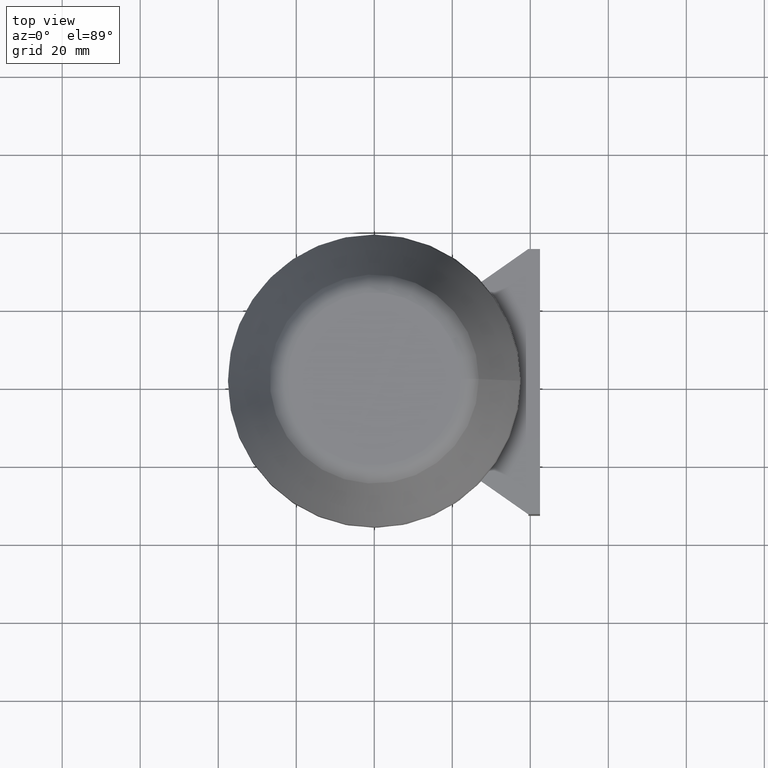
[diagram: clean part render]
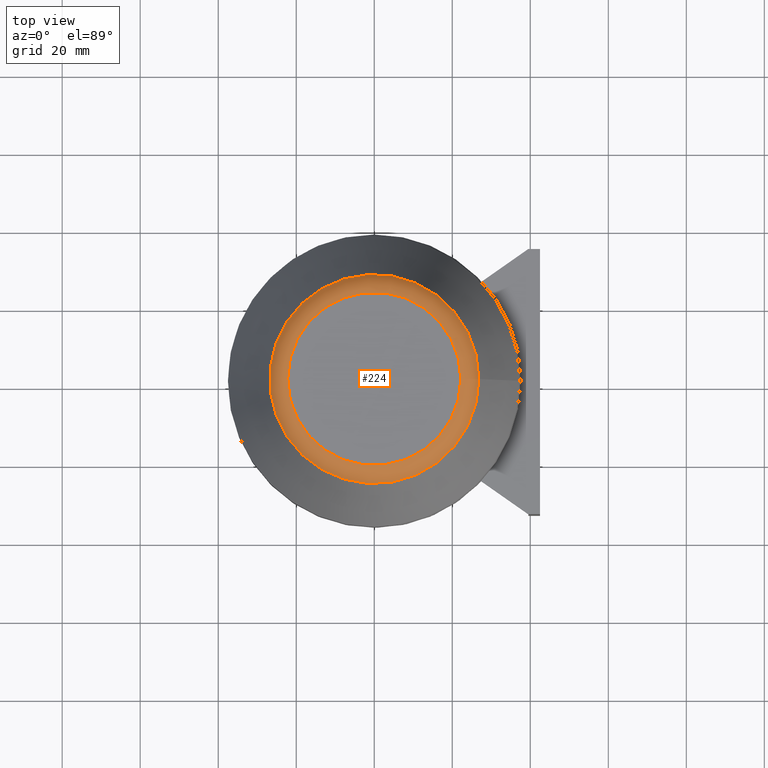
[diagram: same view with one face highlighted and labeled with its STEP entity id]
A machine part, top view. The second image highlights one B-rep face of the part: STEP entity #224.
In plain terms, the highlighted toroidal blend (fillet) surface has major radius 22.1945 mm and minor (blend) radius 5 mm.
Its self-contained STEP definition (entity closure, byte-faithful):
#187=TOROIDAL_SURFACE('',#913,22.1945406146432,5.);
#224=ADVANCED_FACE('',(#299,#300),#187,.T.);
#299=FACE_BOUND('',#364,.T.);
#300=FACE_BOUND('',#365,.T.);
#364=EDGE_LOOP('',(#455));
#365=EDGE_LOOP('',(#456));
#455=ORIENTED_EDGE('',*,*,#753,.T.);
#456=ORIENTED_EDGE('',*,*,#754,.F.);
#670=VERTEX_POINT('',#1280);
#671=VERTEX_POINT('',#1283);
#753=EDGE_CURVE('',#670,#670,#863,.T.);
#754=EDGE_CURVE('',#671,#671,#864,.T.);
#863=CIRCLE('',#910,26.8139382771996);
#864=CIRCLE('',#912,22.1945406146432);
#910=AXIS2_PLACEMENT_3D('',#1279,#1025,#1026);
#912=AXIS2_PLACEMENT_3D('',#1282,#1029,#1030);
#913=AXIS2_PLACEMENT_3D('',#1284,#1031,#1032);
#1025=DIRECTION('',(0.,0.,1.));
#1026=DIRECTION('',(1.,0.,0.));
#1029=DIRECTION('',(0.,0.,1.));
#1030=DIRECTION('',(1.,0.,0.));
#1031=DIRECTION('',(0.,0.,1.));
#1032=DIRECTION('',(1.,0.,0.));
#1279=CARTESIAN_POINT('',(0.,0.,64.0094983065861));
#1280=CARTESIAN_POINT('',(26.8139382771996,0.,64.0094983065861));
#1282=CARTESIAN_POINT('',(0.,0.,67.0960811447607));
#1283=CARTESIAN_POINT('',(22.1945406146432,0.,67.0960811447607));
#1284=CARTESIAN_POINT('',(0.,0.,62.0960811447607));